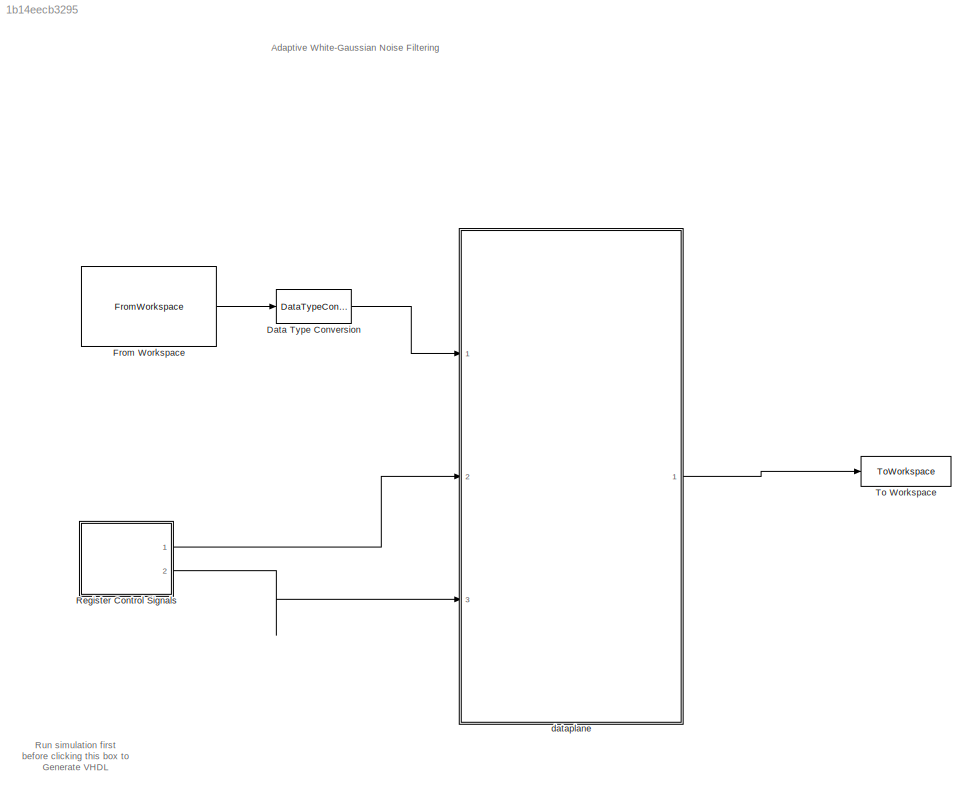
MODEL slx_1b14eecb3295
KIND model
CONFIG AbsTol = auto
CONFIG EnableMultiTasking = off
CONFIG FixedStep = auto
CONFIG InitFcn = initCallback
CONFIG MaxStep = auto
CONFIG MinStep = auto
CONFIG RelTol = 1e-3
CONFIG SampleTimeConstraint = Unconstrained
CONFIG Solver = FixedStepDiscrete
CONFIG SolverName = FixedStepDiscrete
CONFIG StartTime = 0.0
CONFIG StopFcn = stopCallback
CONFIG StopTime = stopTime
BLOCK [DataTypeConversion] Data Type Conversion
  OutDataTypeStr = fixdt(1,32,28)
  RndMeth = Floor
  SaturateOnIntegerOverflow = off
BLOCK [FromWorkspace] From Workspace
  Interpolate = off
  OutDataTypeStr = double
  OutputAfterFinalValue = Setting to zero
  SampleTime = 1 / config.system.sampleClockFrequency
  VariableName = testSignal.asTimeSeries
  ZeroCross = on
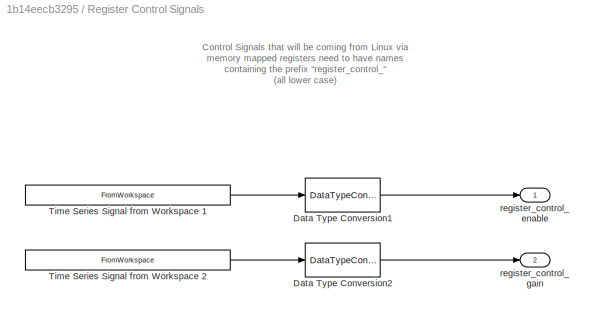
BLOCK [SubSystem] Register Control Signals
  Ports = [0, 2]
  RequestExecContextInheritance = off
BLOCK [DataTypeConversion] Register Control Signals/Data Type Conversion1
  OutDataTypeStr = mp.register{1}.dataType
  RndMeth = Floor
  SaturateOnIntegerOverflow = off
BLOCK [DataTypeConversion] Register Control Signals/Data Type Conversion2
  OutDataTypeStr = mp.register{2}.dataType
  RndMeth = Floor
  SaturateOnIntegerOverflow = off
BLOCK [FromWorkspace] Register Control Signals/Time Series Signal from Workspace 1
  OutDataTypeStr = double
  SampleTime = 1 / config.system.sampleClockFrequency
  VariableName = mp.register{1}.timeseries
  ZeroCross = on
BLOCK [FromWorkspace] Register Control Signals/Time Series Signal from Workspace 2
  OutDataTypeStr = double
  SampleTime = 1 / config.system.sampleClockFrequency
  VariableName = mp.register{2}.timeseries
  ZeroCross = on
BLOCK [Outport] Register Control Signals/register_control_enable
  IconDisplay = Port number
  VectorParamsAs1DForOutWhenUnconnected = off
BLOCK [Outport] Register Control Signals/register_control_gain
  IconDisplay = Port number
  Port = 2
  VectorParamsAs1DForOutWhenUnconnected = off
BLOCK [ToWorkspace] To Workspace
  FixptAsFi = on
  MaxDataPoints = inf
  Ports = [1]
  SampleTime = -1
  Save2DSignal = 2-D array (concatenate along first dimension)
  SaveFormat = Timeseries
  VariableName = dataOut
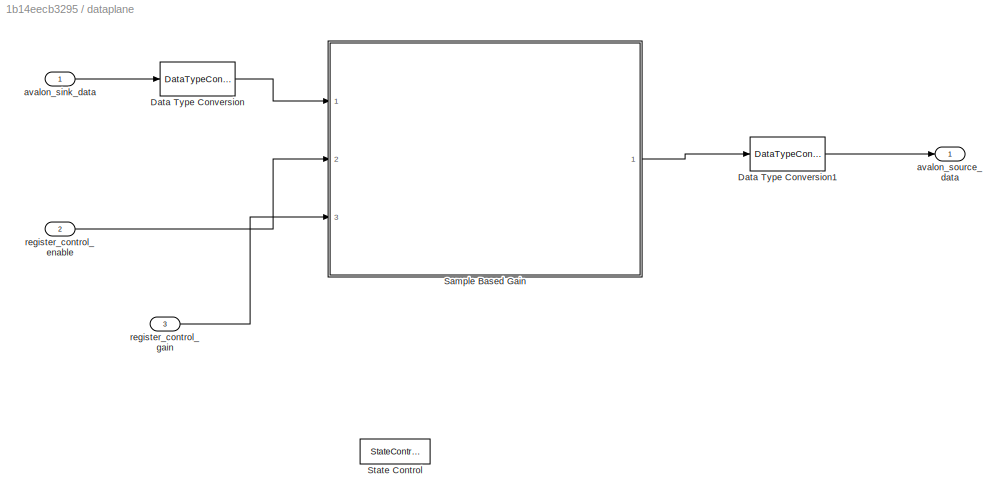
BLOCK [SubSystem] dataplane
  Ports = [3, 1]
  RequestExecContextInheritance = off
  TreatAsAtomicUnit = on
BLOCK [DataTypeConversion] dataplane/Data Type Conversion
  OutDataTypeStr = fixdt(1,24,23)
  RndMeth = Floor
  SaturateOnIntegerOverflow = off
BLOCK [DataTypeConversion] dataplane/Data Type Conversion1
  OutDataTypeStr = fixdt(1,mp.W_bits,mp.F_bits)
  RndMeth = Floor
  SaturateOnIntegerOverflow = off
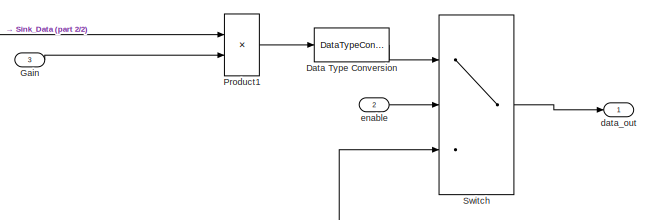
[diagram: dataplane/Sample Based Gain - part 1/2, top right region]
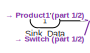
[diagram: dataplane/Sample Based Gain - part 2/2, middle left region]
BLOCK [SubSystem] dataplane/Sample Based Gain
  Ports = [3, 1]
  RequestExecContextInheritance = off
BLOCK [DataTypeConversion] dataplane/Sample Based Gain/Data Type Conversion
  OutDataTypeStr = fixdt(1,24,23)
  RndMeth = Floor
  SaturateOnIntegerOverflow = off
BLOCK [Inport] dataplane/Sample Based Gain/Gain
  IconDisplay = Port number
  Port = 3
BLOCK [Product] dataplane/Sample Based Gain/Product1
  InputSameDT = off
  OutDataTypeStr = Inherit: Inherit via internal rule
  Ports = [2, 1]
  RndMeth = Floor
  SaturateOnIntegerOverflow = off
BLOCK [Inport] dataplane/Sample Based Gain/Sink_Data
  IconDisplay = Port number
BLOCK [Switch] dataplane/Sample Based Gain/Switch
  Criteria = u2 ~= 0
  InputSameDT = off
  SaturateOnIntegerOverflow = off
BLOCK [Outport] dataplane/Sample Based Gain/data_out
  IconDisplay = Port number
BLOCK [Inport] dataplane/Sample Based Gain/enable
  IconDisplay = Port number
  Port = 2
BLOCK [StateControl] dataplane/State Control
  StateControl = Synchronous
BLOCK [Inport] dataplane/avalon_sink_data
  IconDisplay = Port number
BLOCK [Outport] dataplane/avalon_source_data
  IconDisplay = Port number
  VectorParamsAs1DForOutWhenUnconnected = off
BLOCK [Inport] dataplane/register_control_enable
  IconDisplay = Port number
  Port = 2
BLOCK [Inport] dataplane/register_control_gain
  IconDisplay = Port number
  Port = 3
ANNOTATION (root): Adaptive White-Gaussian Noise Filtering
ANNOTATION (root): Run simulation first before clicking this box to Generate VHDL
ANNOTATION Register Control Signals: Control Signals that will be coming from Linux via memory mapped registers need to have names containing the prefix "register_control_" (all lower case)
LINE Data Type Conversion:1 -> dataplane:1
LINE From Workspace:1 -> Data Type Conversion:1
LINE Register Control Signals/Data Type Conversion1:1 -> Register Control Signals/register_control_enable:1
LINE Register Control Signals/Data Type Conversion2:1 -> Register Control Signals/register_control_gain:1
LINE Register Control Signals/Time Series Signal from Workspace 1:1 -> Register Control Signals/Data Type Conversion1:1
LINE Register Control Signals/Time Series Signal from Workspace 2:1 -> Register Control Signals/Data Type Conversion2:1
LINE Register Control Signals:1 -> dataplane:2
LINE Register Control Signals:2 -> dataplane:3
LINE dataplane/Data Type Conversion1:1 -> dataplane/avalon_source_data:1
LINE dataplane/Data Type Conversion:1 -> dataplane/Sample Based Gain:1
LINE dataplane/Sample Based Gain/Data Type Conversion:1 -> dataplane/Sample Based Gain/Switch:1
LINE dataplane/Sample Based Gain/Gain:1 -> dataplane/Sample Based Gain/Product1:2
LINE dataplane/Sample Based Gain/Product1:1 -> dataplane/Sample Based Gain/Data Type Conversion:1
NET dataplane/Sample Based Gain/Sink_Data:1 -> dataplane/Sample Based Gain/Product1:1, dataplane/Sample Based Gain/Switch:3
LINE dataplane/Sample Based Gain/Switch:1 -> dataplane/Sample Based Gain/data_out:1
LINE dataplane/Sample Based Gain/enable:1 -> dataplane/Sample Based Gain/Switch:2
LINE dataplane/Sample Based Gain:1 -> dataplane/Data Type Conversion1:1
LINE dataplane/avalon_sink_data:1 -> dataplane/Data Type Conversion:1
LINE dataplane/register_control_enable:1 -> dataplane/Sample Based Gain:2
LINE dataplane/register_control_gain:1 -> dataplane/Sample Based Gain:3
LINE dataplane:1 -> To Workspace:1
note: NET lines group one-source signal fan-out (src -> all destinations, sorted); 1:1 wires keep LINE
